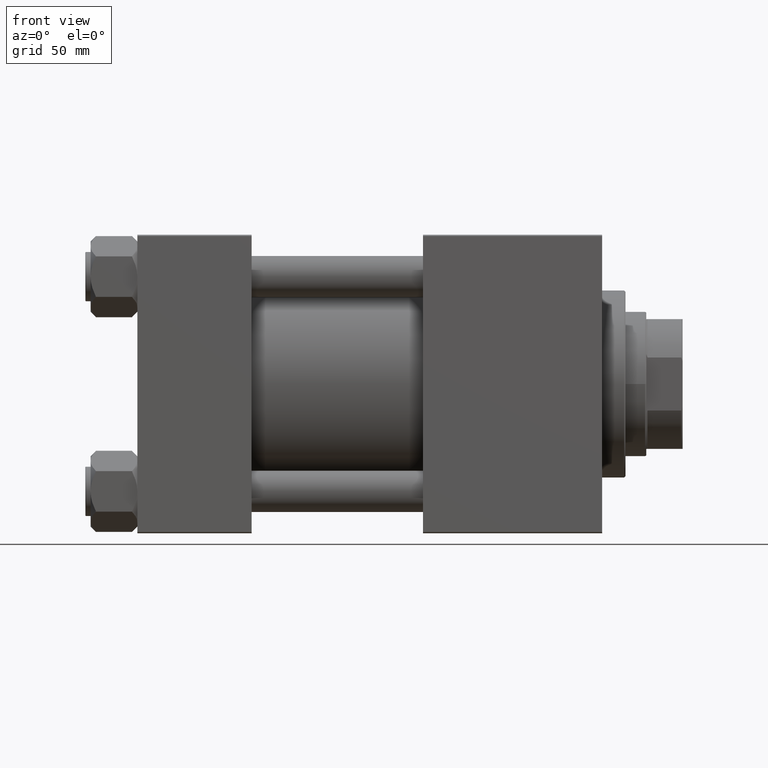
[diagram: clean part render]
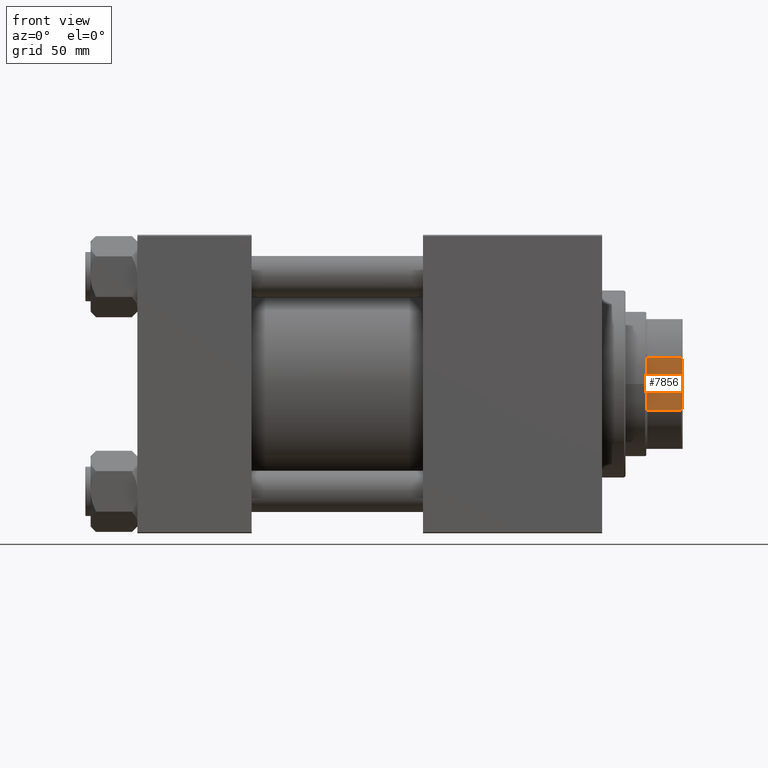
[diagram: same view with one face highlighted and labeled with its STEP entity id]
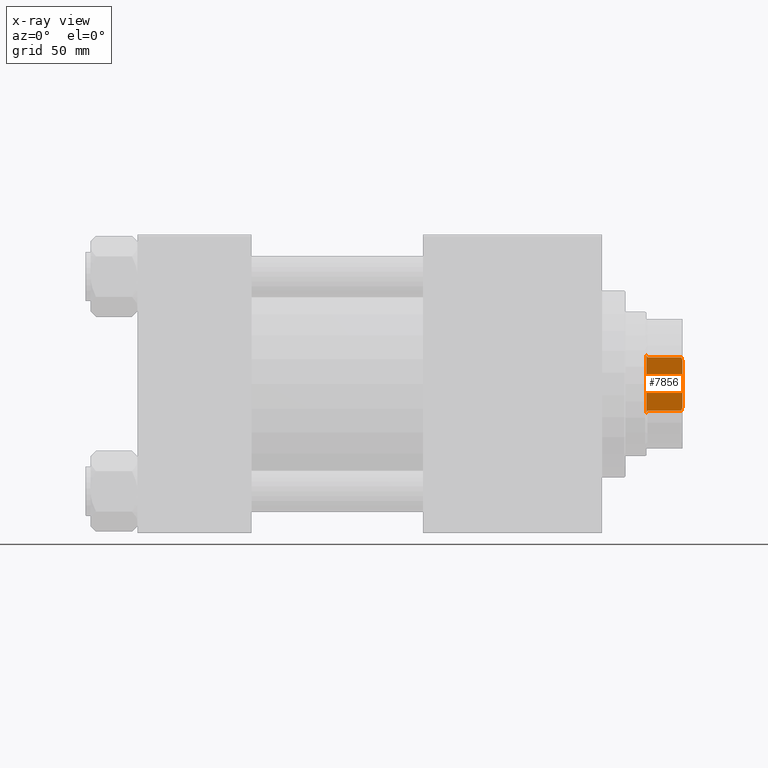
[diagram: x-ray of the same camera — body ghosted, the highlighted face saturated]
A machine part, front view. The second image highlights one B-rep face of the part: STEP entity #7856.
The next image is the same camera in x-ray: the body ghosted, the highlighted face saturated — about 0% of this face is hidden behind the body in this view.
In plain terms, the highlighted planar face has unit normal (0, 1, 0).
Its self-contained STEP definition (entity closure, byte-faithful):
#177 = VERTEX_POINT ( 'NONE', #33330 ) ;
#274 = VECTOR ( 'NONE', #2929, 1000.000000000000000 ) ;
#631 = CARTESIAN_POINT ( 'NONE',  ( 25.00000000000000000, 10.19803902718555655, -0.001000000000001000089 ) ) ;
#2929 = DIRECTION ( 'NONE',  ( -1.387778780781445676E-16, 1.000000000000000000, -0.000000000000000000 ) ) ;
#3513 = CARTESIAN_POINT ( 'NONE',  ( 25.00000000000000000, -11.03910869777047310, 152.1738589806928417 ) ) ;
#4099 = B_SPLINE_CURVE_WITH_KNOTS ( 'NONE', 3,
 ( #29481, #41271, #10799, #44872 ),
 .UNSPECIFIED., .F., .F.,
 ( 4, 4 ),
 ( 1.734723475976807094E-18, 0.001494935877430039403 ),
 .UNSPECIFIED. ) ;
#4807 = CARTESIAN_POINT ( 'NONE',  ( 25.00000000000000000, 25.00000000000000000, 166.0000000000000000 ) ) ;
#5442 = CARTESIAN_POINT ( 'NONE',  ( 25.00000000000000000, 11.45643923738957071, 152.0000000000000000 ) ) ;
#5654 = ORIENTED_EDGE ( 'NONE', *, *, #45058, .T. ) ;
#7856 = ADVANCED_FACE ( 'NONE', ( #32958 ), #8903, .F. ) ;
#8030 = EDGE_CURVE ( 'NONE', #26553, #38290, #18821, .T. ) ;
#8304 = LINE ( 'NONE', #631, #26208 ) ;
#8570 = B_SPLINE_CURVE_WITH_KNOTS ( 'NONE', 3,
 ( #39357, #42960, #42458, #23249 ),
 .UNSPECIFIED., .F., .F.,
 ( 4, 4 ),
 ( 0.000000000000000000, 0.001494935877430027911 ),
 .UNSPECIFIED. ) ;
#8783 = ORIENTED_EDGE ( 'NONE', *, *, #33464, .T. ) ;
#8903 = PLANE ( 'NONE',  #14647 ) ;
#9294 = ORIENTED_EDGE ( 'NONE', *, *, #14810, .T. ) ;
#9539 = EDGE_CURVE ( 'NONE', #26553, #47750, #38239, .T. ) ;
#10799 = CARTESIAN_POINT ( 'NONE',  ( 25.00000000000000355, -9.731776668926020335, 165.6761096935717887 ) ) ;
#11436 = ORIENTED_EDGE ( 'NONE', *, *, #45641, .T. ) ;
#11689 = VERTEX_POINT ( 'NONE', #49119 ) ;
#12876 = EDGE_LOOP ( 'NONE', ( #8783, #9294, #36003, #11436, #16680, #45503, #5654, #48084 ) ) ;
#13671 = CARTESIAN_POINT ( 'NONE',  ( 25.00000000000000000, 25.00000000000000000, 166.0000000000000000 ) ) ;
#14647 = AXIS2_PLACEMENT_3D ( 'NONE', #4807, #28864, #28098 ) ;
#14810 = EDGE_CURVE ( 'NONE', #177, #11689, #8570, .T. ) ;
#16680 = ORIENTED_EDGE ( 'NONE', *, *, #9539, .F. ) ;
#16780 = CARTESIAN_POINT ( 'NONE',  ( 24.99999999999999645, -10.19803902718556188, 165.5000000000000000 ) ) ;
#18821 = B_SPLINE_CURVE_WITH_KNOTS ( 'NONE', 3,
 ( #23701, #27782, #3513, #19371 ),
 .UNSPECIFIED., .F., .F.,
 ( 4, 4 ),
 ( 0.1247771908928544254, 0.1261173750731113541 ),
 .UNSPECIFIED. ) ;
#19371 = CARTESIAN_POINT ( 'NONE',  ( 25.00000000000000000, -11.45643923738956715, 152.0000000000000000 ) ) ;
#20237 = VERTEX_POINT ( 'NONE', #25041 ) ;
#21613 = LINE ( 'NONE', #13671, #274 ) ;
#22401 = VECTOR ( 'NONE', #38356, 1000.000000000000000 ) ;
#23249 = CARTESIAN_POINT ( 'NONE',  ( 25.00000000000000355, 8.789197915623473634, 166.0000000000000000 ) ) ;
#23701 = CARTESIAN_POINT ( 'NONE',  ( 24.99999999999999645, -10.19803902718556188, 152.5000000000000568 ) ) ;
#25041 = CARTESIAN_POINT ( 'NONE',  ( 25.00000000000000000, 10.19803902718555655, 152.5000000000000568 ) ) ;
#25782 = CARTESIAN_POINT ( 'NONE',  ( 25.00000000000000000, 11.03921204036252668, 152.1738159283973459 ) ) ;
#25833 = LINE ( 'NONE', #41453, #22401 ) ;
#26208 = VECTOR ( 'NONE', #40030, 1000.000000000000000 ) ;
#26553 = VERTEX_POINT ( 'NONE', #37035 ) ;
#26577 = EDGE_CURVE ( 'NONE', #27742, #20237, #45883, .T. ) ;
#27742 = VERTEX_POINT ( 'NONE', #5442 ) ;
#27782 = CARTESIAN_POINT ( 'NONE',  ( 25.00000000000000000, -10.61970411846362516, 152.3407349238053996 ) ) ;
#28098 = DIRECTION ( 'NONE',  ( 1.387778780781445922E-16, -1.000000000000000000, 0.000000000000000000 ) ) ;
#28864 = DIRECTION ( 'NONE',  ( -1.000000000000000000, -1.387778780781445922E-16, 0.000000000000000000 ) ) ;
#29481 = CARTESIAN_POINT ( 'NONE',  ( 25.00000000000000355, -8.789197915623464752, 166.0000000000000000 ) ) ;
#29606 = CARTESIAN_POINT ( 'NONE',  ( 25.00000000000000000, 11.45643923738957071, 152.0000000000000000 ) ) ;
#30128 = CARTESIAN_POINT ( 'NONE',  ( 25.00000000000000000, 10.61981162664453038, 152.3406943174118737 ) ) ;
#32958 = FACE_OUTER_BOUND ( 'NONE', #12876, .T. ) ;
#33330 = CARTESIAN_POINT ( 'NONE',  ( 25.00000000000000000, 10.19803902718555655, 165.5000000000000000 ) ) ;
#33464 = EDGE_CURVE ( 'NONE', #20237, #177, #8304, .T. ) ;
#35111 = VECTOR ( 'NONE', #45703, 1000.000000000000000 ) ;
#36003 = ORIENTED_EDGE ( 'NONE', *, *, #44293, .F. ) ;
#37035 = CARTESIAN_POINT ( 'NONE',  ( 24.99999999999999645, -10.19803902718556188, 152.5000000000000568 ) ) ;
#38239 = LINE ( 'NONE', #49297, #35111 ) ;
#38290 = VERTEX_POINT ( 'NONE', #40409 ) ;
#38356 = DIRECTION ( 'NONE',  ( -1.387778780781445676E-16, 1.000000000000000000, -0.000000000000000000 ) ) ;
#39357 = CARTESIAN_POINT ( 'NONE',  ( 25.00000000000000000, 10.19803902718555655, 165.5000000000000000 ) ) ;
#40030 = DIRECTION ( 'NONE',  ( -0.000000000000000000, -0.000000000000000000, 1.000000000000000000 ) ) ;
#40409 = CARTESIAN_POINT ( 'NONE',  ( 25.00000000000000000, -11.45643923738956715, 152.0000000000000000 ) ) ;
#41271 = CARTESIAN_POINT ( 'NONE',  ( 25.00000000000000355, -9.262276112429413288, 165.8430951735360850 ) ) ;
#41400 = CARTESIAN_POINT ( 'NONE',  ( 25.00000000000000000, 10.19803902718555655, 152.5000000000000568 ) ) ;
#41453 = CARTESIAN_POINT ( 'NONE',  ( 25.00000000000000000, 25.00000000000000000, 152.0000000000000000 ) ) ;
#42458 = CARTESIAN_POINT ( 'NONE',  ( 25.00000000000000355, 9.262276112429415065, 165.8430951735360850 ) ) ;
#42960 = CARTESIAN_POINT ( 'NONE',  ( 25.00000000000000000, 9.731776668926015006, 165.6761096935717887 ) ) ;
#44293 = EDGE_CURVE ( 'NONE', #46241, #11689, #21613, .T. ) ;
#44872 = CARTESIAN_POINT ( 'NONE',  ( 24.99999999999999645, -10.19803902718556188, 165.5000000000000000 ) ) ;
#45058 = EDGE_CURVE ( 'NONE', #38290, #27742, #25833, .T. ) ;
#45503 = ORIENTED_EDGE ( 'NONE', *, *, #8030, .T. ) ;
#45641 = EDGE_CURVE ( 'NONE', #46241, #47750, #4099, .T. ) ;
#45703 = DIRECTION ( 'NONE',  ( -0.000000000000000000, -0.000000000000000000, 1.000000000000000000 ) ) ;
#45883 = B_SPLINE_CURVE_WITH_KNOTS ( 'NONE', 3,
 ( #29606, #25782, #30128, #41400 ),
 .UNSPECIFIED., .F., .F.,
 ( 4, 4 ),
 ( 0.1512937174508678095, 0.1525988942206353005 ),
 .UNSPECIFIED. ) ;
#46241 = VERTEX_POINT ( 'NONE', #49621 ) ;
#47750 = VERTEX_POINT ( 'NONE', #16780 ) ;
#48084 = ORIENTED_EDGE ( 'NONE', *, *, #26577, .T. ) ;
#49119 = CARTESIAN_POINT ( 'NONE',  ( 25.00000000000000355, 8.789197915623473634, 166.0000000000000000 ) ) ;
#49297 = CARTESIAN_POINT ( 'NONE',  ( 24.99999999999999645, -10.19803902718556188, -0.001000000000001000089 ) ) ;
#49621 = CARTESIAN_POINT ( 'NONE',  ( 25.00000000000000355, -8.789197915623464752, 166.0000000000000000 ) ) ;